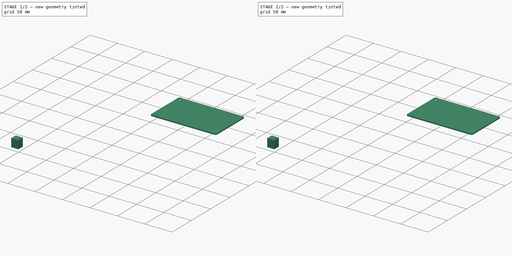
[diagram: build sequence overview — one tinted view per stage of 2, left to right]
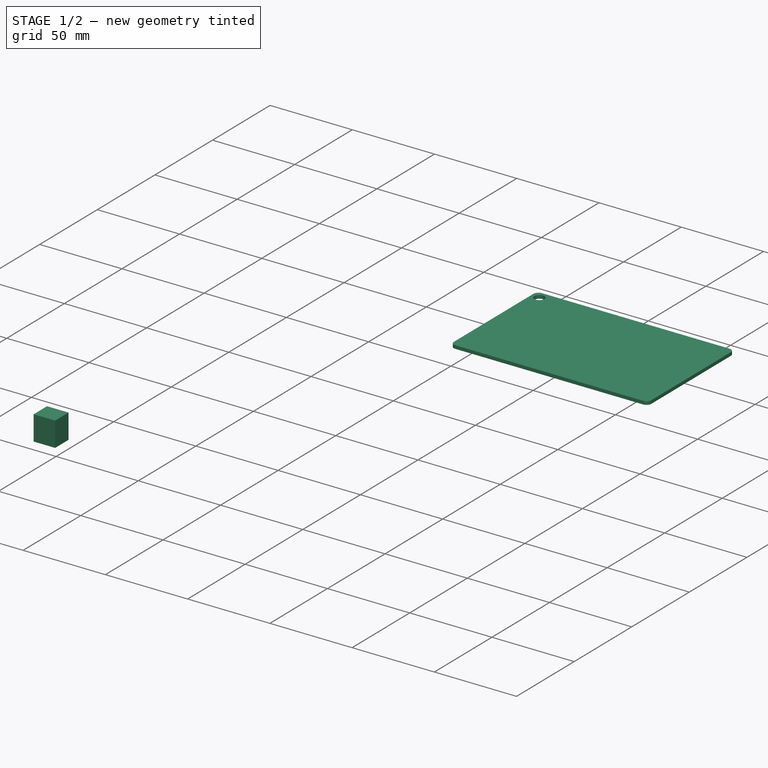
[diagram: stage 1 of 2 — iso view after this stage's code; geometry added in this stage tinted green]
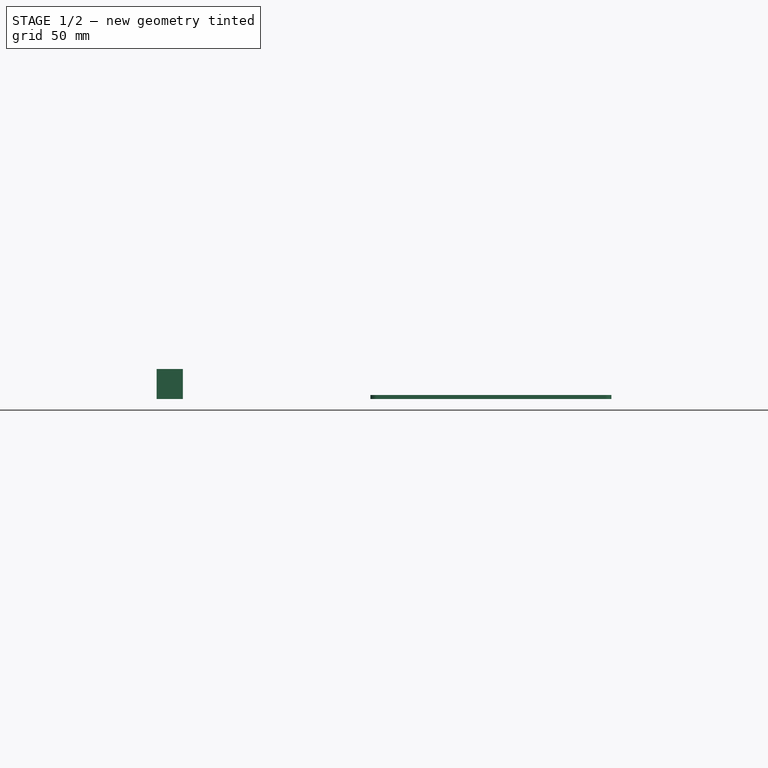
[diagram: stage 1 of 2 — front view after this stage's code; geometry added in this stage tinted green]
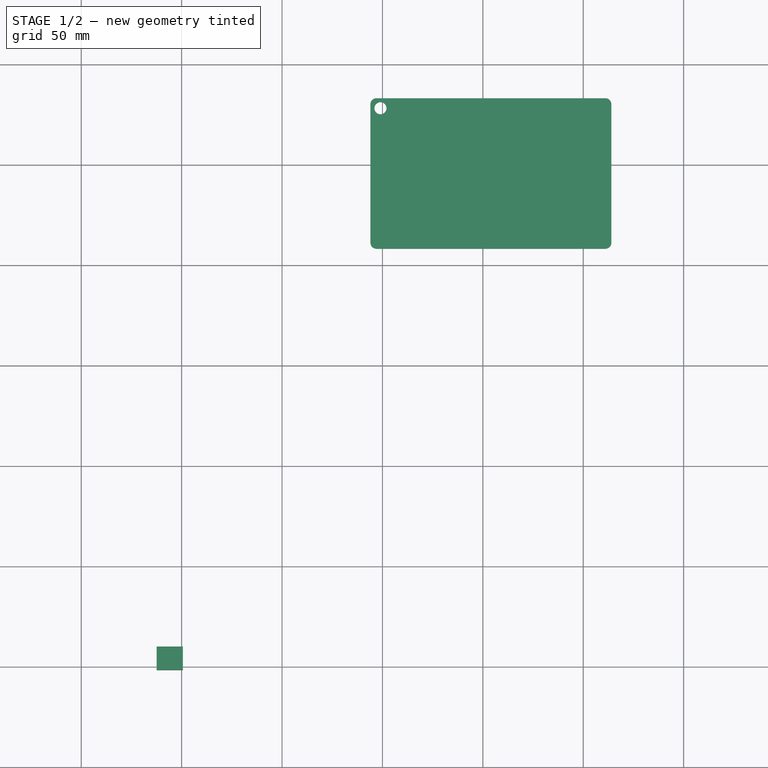
[diagram: stage 1 of 2 — top view after this stage's code; geometry added in this stage tinted green]
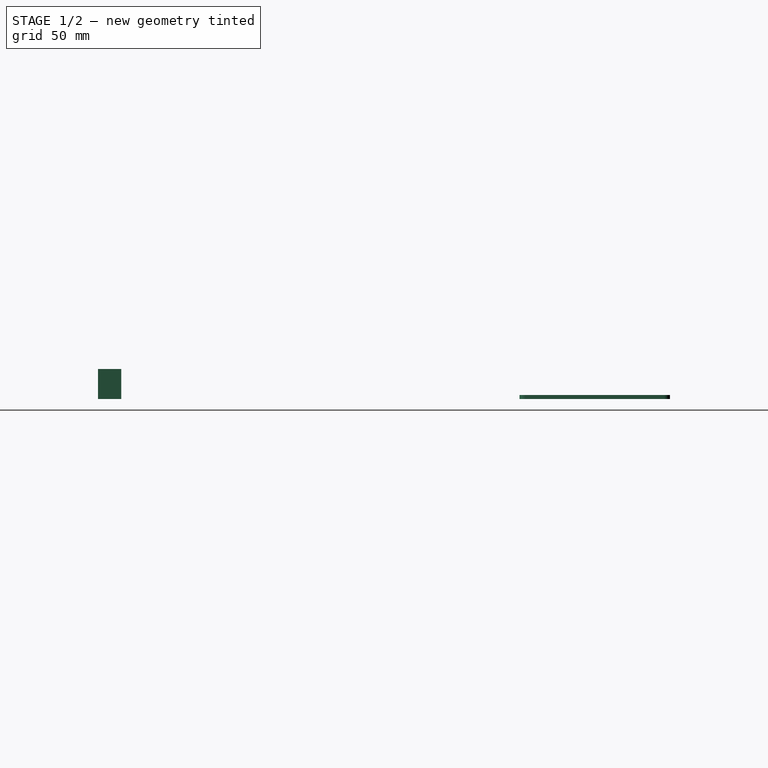
[diagram: stage 1 of 2 — right view after this stage's code; geometry added in this stage tinted green]
FCSTD DOCUMENT  (FreeCAD 0.17R5235 (Git shallow))
Label: test-asm3
License: All rights reserved
LicenseURL: http://en.wikipedia.org/wiki/All_rights_reserved
objects: App::FeaturePython×10, Sketcher::SketchObject×3, PartDesign::Pad×3, PartDesign::Body×2, Part::FeaturePython×1
note: 11 computed .brp shape members not serialized (recipe doc carries the construction recipe); baked Part::Feature solids carry a one-line shape summary decoded from their .brp

FEATURE [Sketcher::SketchObject] Sketch
  LastGeoID = 35
  MapMode = 5
  Support = -> [XY_Plane]
  sketch-geometry (9):
    g0: LineSegment StartX=97.0112 StartY=283.283 StartZ=0 EndX=211.011 EndY=283.283 EndZ=0
    g1: LineSegment StartX=214.011 StartY=280.283 StartZ=0 EndX=214.011 EndY=211.283 EndZ=0
    g2: LineSegment StartX=211.011 StartY=208.283 StartZ=0 EndX=97.0112 EndY=208.283 EndZ=0
    g3: LineSegment StartX=94.0112 StartY=211.283 StartZ=0 EndX=94.0112 EndY=280.283 EndZ=0
    g4: ArcOfCircle CenterX=97.0112 CenterY=280.283 CenterZ=0 NormalX=0 NormalY=0 NormalZ=1 AngleXU=0 Radius=3 StartAngle=1.5708 EndAngle=3.14159
    g5: ArcOfCircle CenterX=97.0112 CenterY=211.283 CenterZ=0 NormalX=0 NormalY=0 NormalZ=1 AngleXU=0 Radius=3 StartAngle=3.14159 EndAngle=4.71239
    g6: ArcOfCircle CenterX=211.011 CenterY=280.283 CenterZ=0 NormalX=0 NormalY=0 NormalZ=1 AngleXU=0 Radius=3 StartAngle=0 EndAngle=1.5708
    g7: ArcOfCircle CenterX=211.011 CenterY=211.283 CenterZ=0 NormalX=0 NormalY=0 NormalZ=1 AngleXU=0 Radius=3 StartAngle=4.71239 EndAngle=6.28319
    g8: Circle CenterX=99.0112 CenterY=278.283 CenterZ=0 NormalX=0 NormalY=0 NormalZ=1 AngleXU=0 Radius=3
  constraints (24):
    c: Horizontal(g0)
    c: Horizontal(g2)
    c: Vertical(g1)
    c: Vertical(g3)
    c: Tangent(g0,g4) = 1.5708
    c: Tangent(g3,g4) = 1.5708
    c: Tangent(g2,g5) = 1.5708
    c: Tangent(g3,g5) = 1.5708
    c: Tangent(g0,g6) = 1.5708
    c: Tangent(g1,g6) = 1.5708
    c: Tangent(g1,g7) = 1.5708
    c: Tangent(g2,g7) = 1.5708
    c: Equal(g4,g5)
    c: Equal(g5,g6)
    c: Equal(g6,g7)
    c: Radius(g4) = 3
    c: DistanceX(g3,g1) = 120
    c: DistanceY(g2,g0) = 75
    c: Radius(g8) = 3
    c: DistanceY(g8,g0) = 5
    c: DistanceX(g3,g8) = 5
    c: Symmetric(g8,g8,g1)
    c: Symmetric(g8,g8,g1)
    c: Symmetric(g8,g8,g3)
FEATURE [PartDesign::Pad] Pad
  ClaimChildren = false
  Length = 2
  Length2 = 100
  Profile = -> Sketch
  Type = 0
FEATURE [PartDesign::Body] Body  label="pcb"
  Group = -> [Sketch,Pad,Sketch001,Pad001]
  Origin = -> Origin
  Placement = pos=(-153.765,-245.385,-2) rot=(0,0,1;0.02496rad)
  Tip = -> Pad001
FEATURE [Sketcher::SketchObject] Sketch002
  LastGeoID = 8
  MapMode = 5
  Support = -> [XY_Plane001]
  sketch-geometry (4):
    g0: LineSegment StartX=-12.461 StartY=-1.63139 StartZ=0 EndX=0.590075 EndY=-1.63139 EndZ=0
    g1: LineSegment StartX=0.590075 StartY=-1.63139 StartZ=0 EndX=0.590075 EndY=9.9619 EndZ=0
    g2: LineSegment StartX=0.590075 StartY=9.9619 StartZ=0 EndX=-12.461 EndY=9.9619 EndZ=0
    g3: LineSegment StartX=-12.461 StartY=9.9619 StartZ=0 EndX=-12.461 EndY=-1.63139 EndZ=0
  constraints (8):
    c: Coincident(g0,g1)
    c: Coincident(g1,g2)
    c: Coincident(g2,g3)
    c: Coincident(g3,g0)
    c: Horizontal(g0)
    c: Horizontal(g2)
    c: Vertical(g1)
    c: Vertical(g3)
FEATURE [PartDesign::Pad] Pad002
  ClaimChildren = false
  Length = 15
  Length2 = 100
  Profile = -> Sketch002
  Type = 0
FEATURE [PartDesign::Body] Body001  label="ethernet"
  Group = -> [Sketch002,Pad002]
  Origin = -> Origin001
  Tip = -> Pad002
FEATURE [App::FeaturePython] Parts  # WARN: FeaturePython — macro-defined, semantics opaque (R4)
  Group = -> [Body,Body001]
  GroupMode = 0
FEATURE [App::FeaturePython] Element  # link proxy (typed FeaturePython)
  LinkedObject = -> Parts [Body001.Pad002.Face6]
FEATURE [App::FeaturePython] Element001  # link proxy (typed FeaturePython)
  LinkedObject = -> Parts [Body001.Pad002.Face4]
FEATURE [App::FeaturePython] ElementLink  # link proxy (typed FeaturePython)
  LinkedObject = -> Elements [$Element002.]
FEATURE [App::FeaturePython] Element002  # link proxy (typed FeaturePython)
  LinkedObject = -> Parts [Body001.Pad002.Face5]
FEATURE [App::FeaturePython] ElementLink001  # link proxy (typed FeaturePython)
  LinkedObject = -> Elements [$Element003.]
FEATURE [App::FeaturePython] Constraint  label="PlaneCoincident"  # WARN: FeaturePython — macro-defined, semantics opaque (R4)
  Angle = 0
  AnglePitch = 0
  AngleRoll = 0
  Cascade = false
  Disabled = false
  Group = -> [ElementLink,ElementLink001]
  LockAngle = false
  OffsetX = 0
  OffsetY = 0
  _ConstraintType = 35
FEATURE [App::FeaturePython] Constraints  # WARN: FeaturePython — macro-defined, semantics opaque (R4)
  Group = -> [Constraint]
FEATURE [App::FeaturePython] Element003  # link proxy (typed FeaturePython)
  LinkedObject = -> Parts [Body.Pad001.Face11]
FEATURE [App::FeaturePython] Elements  # WARN: FeaturePython — macro-defined, semantics opaque (R4)
  Group = -> [Element,Element001,Element002,Element003]
FEATURE [Part::FeaturePython] Assembly  # WARN: FeaturePython — macro-defined, semantics opaque (R4)
  AutoRelax = false
  BuildShape = 0
  Group = -> [Constraints,Elements,Parts]
  Verbose = false
  _SolverType = 1
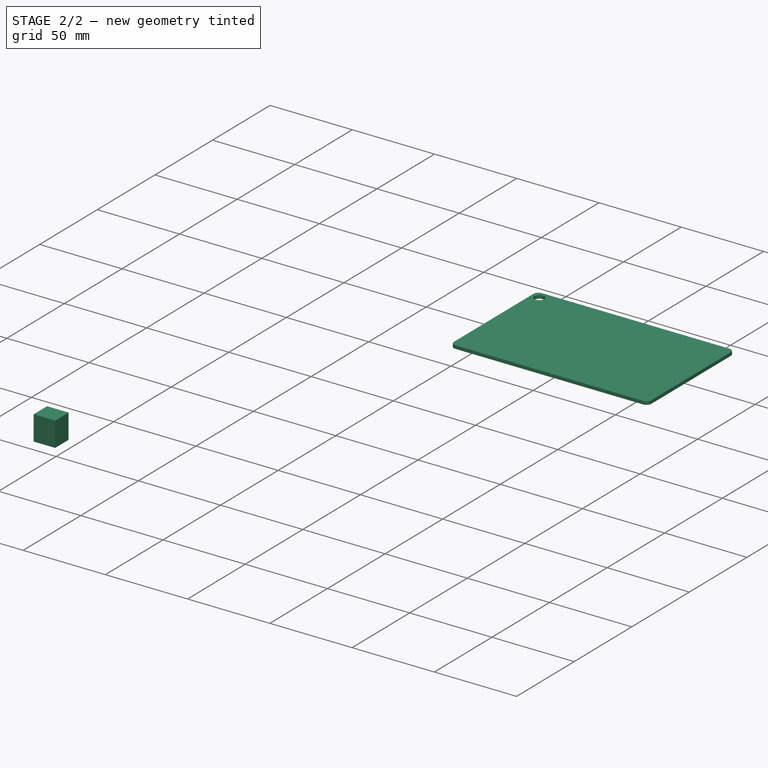
[diagram: stage 2 of 2 — iso view after this stage's code; geometry added in this stage tinted green]
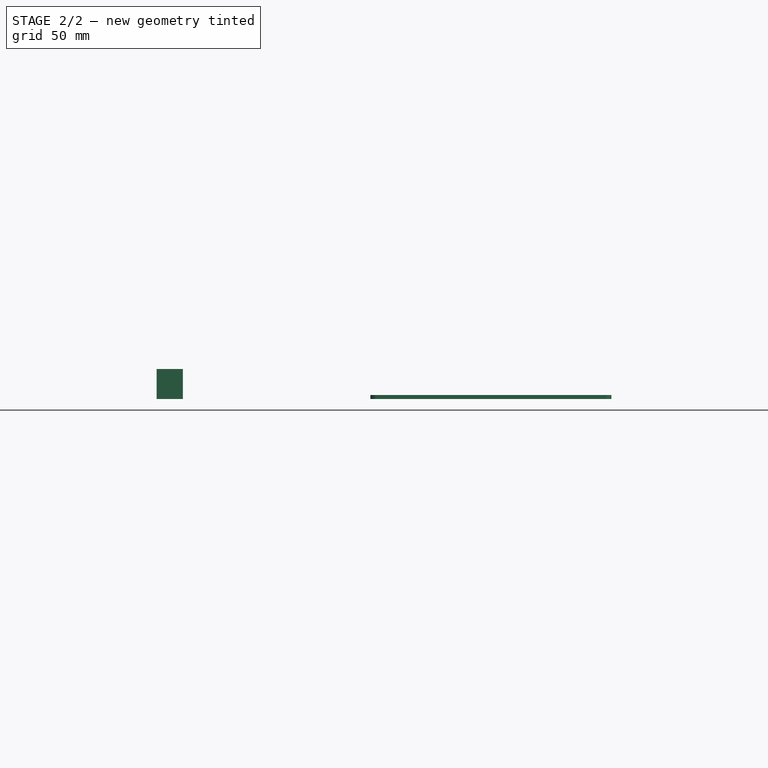
[diagram: stage 2 of 2 — front view after this stage's code; geometry added in this stage tinted green]
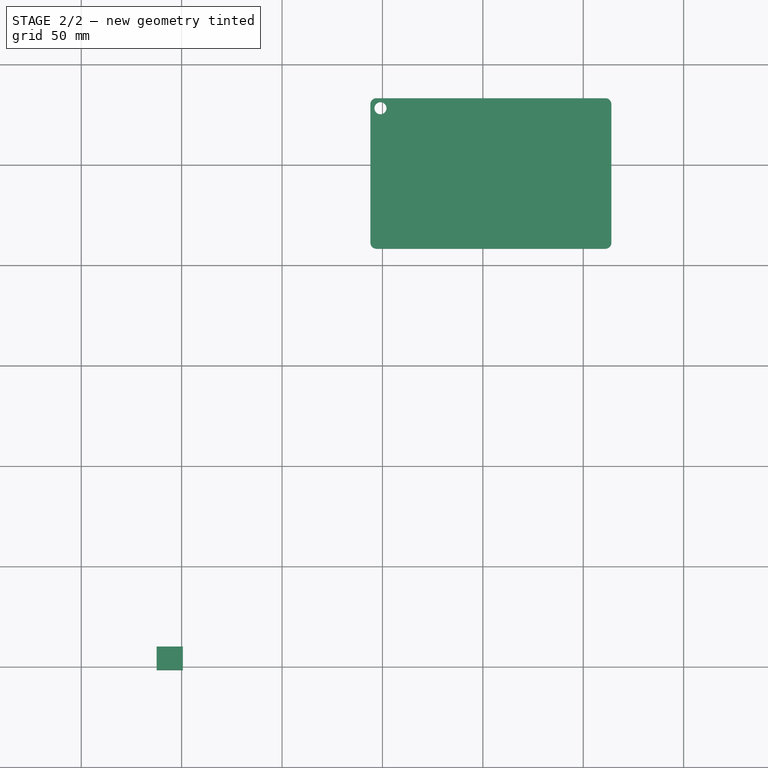
[diagram: stage 2 of 2 — top view after this stage's code; geometry added in this stage tinted green]
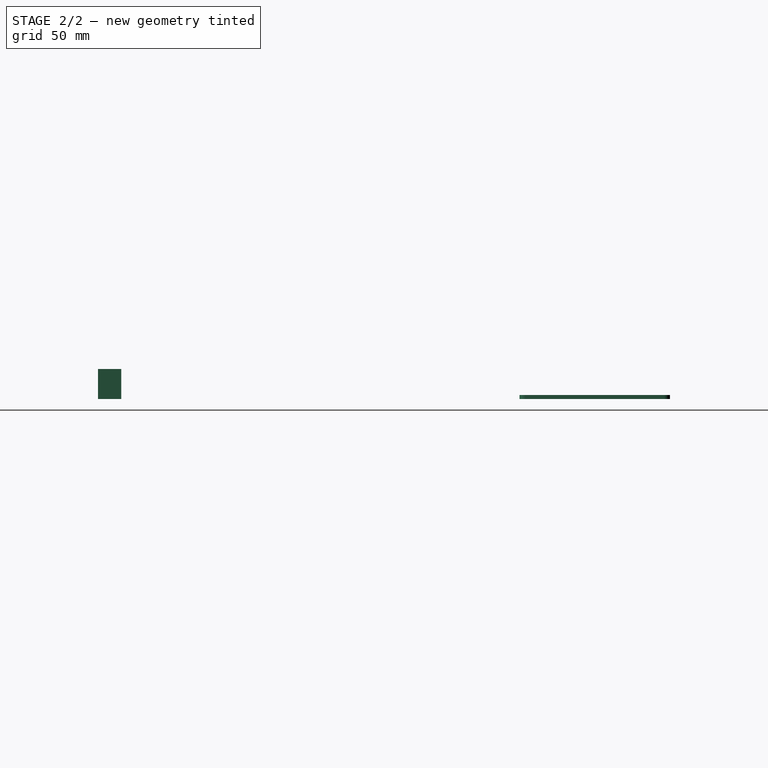
[diagram: stage 2 of 2 — right view after this stage's code; geometry added in this stage tinted green]
FEATURE [Sketcher::SketchObject] Sketch001
  LastGeoID = 4
  MapMode = 5
  Support = -> [XY_Plane]
  sketch-geometry (4):
    g0: LineSegment StartX=137.194 StartY=322.79 StartZ=0 EndX=157.713 EndY=322.79 EndZ=0
    g1: LineSegment StartX=157.713 StartY=322.79 StartZ=0 EndX=157.713 EndY=306.888 EndZ=0
    g2: LineSegment StartX=157.713 StartY=306.888 StartZ=0 EndX=137.194 EndY=306.888 EndZ=0
    g3: LineSegment StartX=137.194 StartY=306.888 StartZ=0 EndX=137.194 EndY=322.79 EndZ=0
  constraints (8):
    c: Coincident(g0,g1)
    c: Coincident(g1,g2)
    c: Coincident(g2,g3)
    c: Coincident(g3,g0)
    c: Horizontal(g0)
    c: Horizontal(g2)
    c: Vertical(g1)
    c: Vertical(g3)
FEATURE [PartDesign::Pad] Pad001
  BaseFeature = -> Pad
  ClaimChildren = false
  Length = 15
  Length2 = 100
  Profile = -> Sketch001
  Type = 0
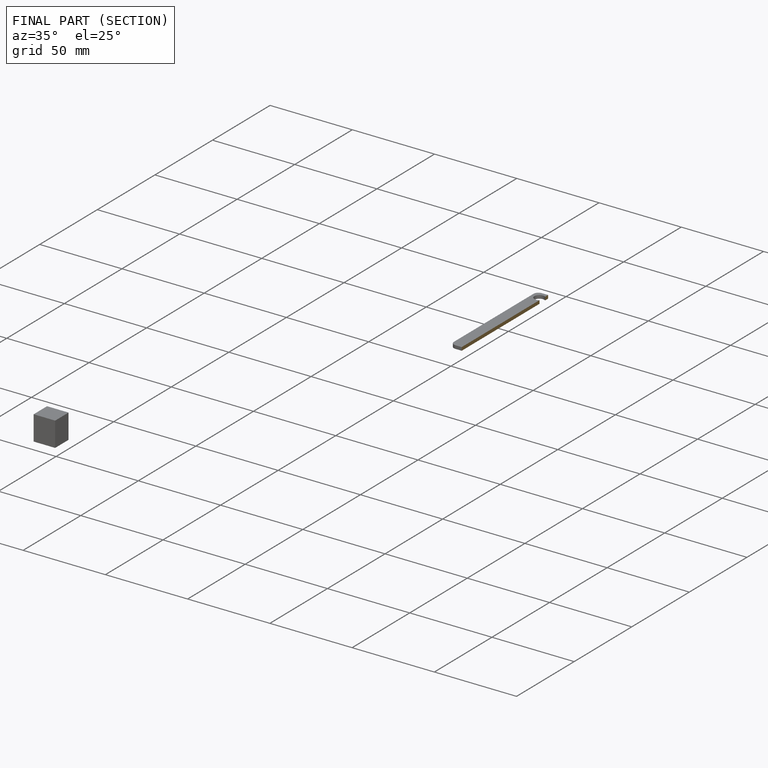
[diagram: finished part — half-section view (interior)]
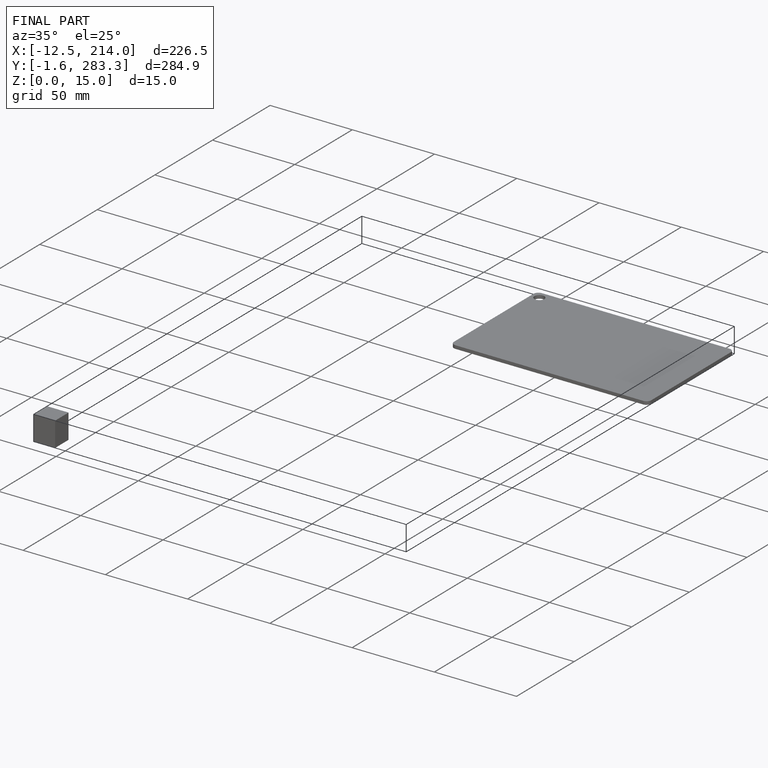
[diagram: finished part — iso view with bounding-box wireframe]
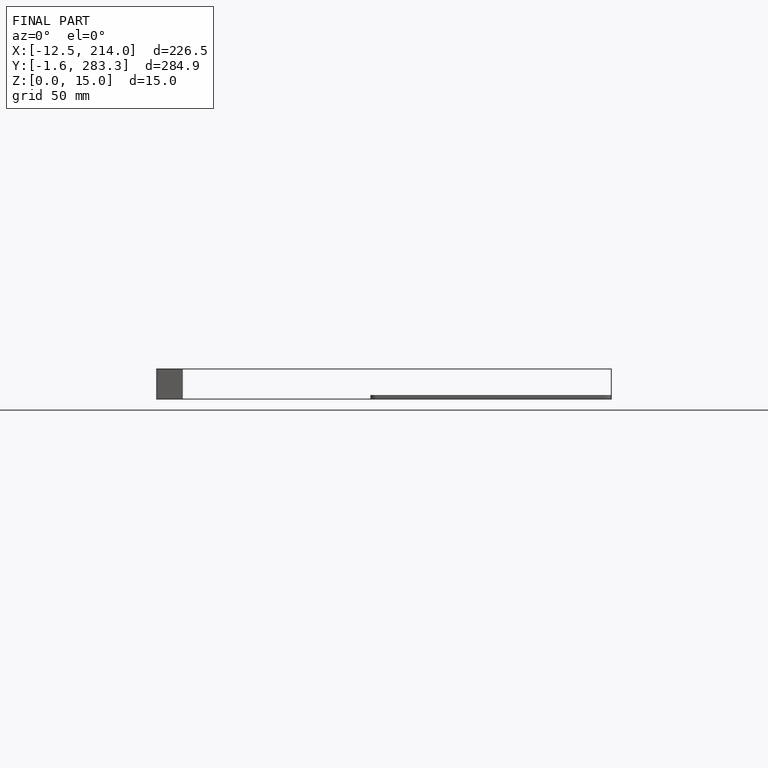
[diagram: finished part — front view with bounding-box wireframe]
